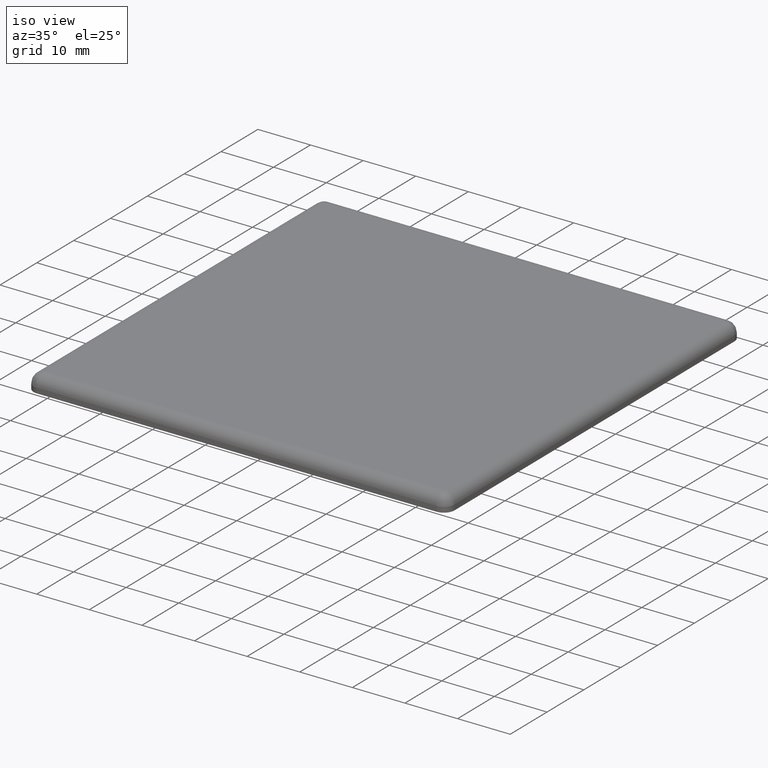
[diagram: clean part render]
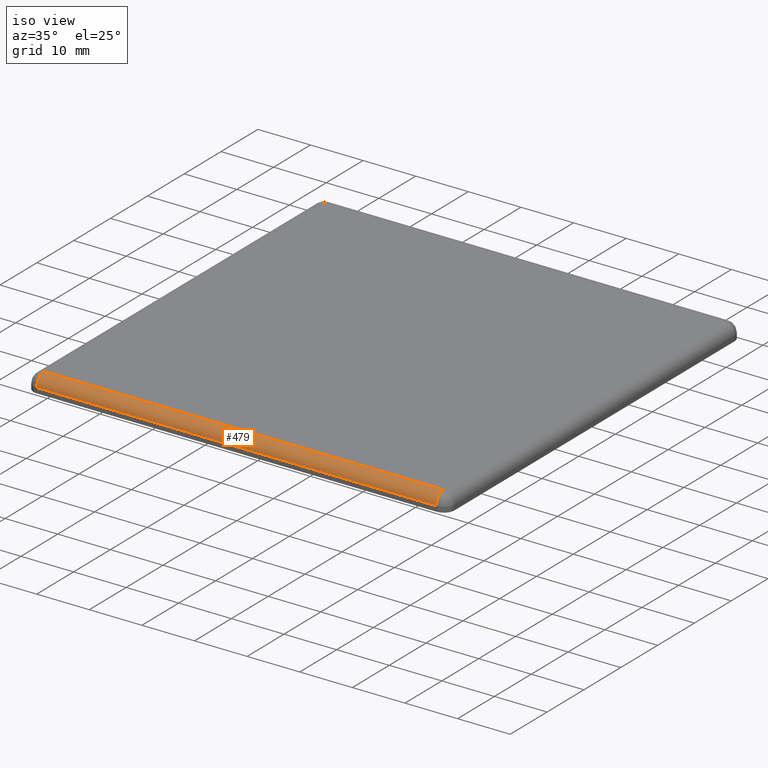
[diagram: same view with one face highlighted and labeled with its STEP entity id]
A machine part, iso view. The second image highlights one B-rep face of the part: STEP entity #479.
In plain terms, the highlighted cylindrical surface (edge-blend (fillet) strip) has radius 2 mm, axis along (-1, 0, 0).
Its self-contained STEP definition (entity closure, byte-faithful):
#149=CARTESIAN_POINT('',(37.999999999839922,2.0,2.999999333987962));
#150=VERTEX_POINT('',#149);
#167=CARTESIAN_POINT('',(-37.999999999839929,2.0,2.999999333987962));
#168=VERTEX_POINT('',#167);
#175=CARTESIAN_POINT('',(-37.999999999839929,2.0,2.999999333987962));
#176=DIRECTION('',(1.0,0.0,0.0));
#177=VECTOR('',#176,75.999999999679858);
#178=LINE('',#175,#177);
#179=EDGE_CURVE('',#168,#150,#178,.T.);
#262=CARTESIAN_POINT('',(-37.999999999839929,0.0,0.999999333987962));
#263=VERTEX_POINT('',#262);
#288=CARTESIAN_POINT('',(37.999999999839929,0.0,0.999999333987962));
#289=VERTEX_POINT('',#288);
#296=CARTESIAN_POINT('',(-37.999999999839929,0.0,0.999999333987962));
#297=DIRECTION('',(1.0,0.0,0.0));
#298=VECTOR('',#297,75.999999999679858);
#299=LINE('',#296,#298);
#300=EDGE_CURVE('',#263,#289,#299,.T.);
#451=CARTESIAN_POINT('',(37.999999999839929,2.0,0.999999333987962));
#452=DIRECTION('',(1.0,0.0,0.0));
#453=DIRECTION('',(0.0,-1.0,0.0));
#454=AXIS2_PLACEMENT_3D('',#451,#452,#453);
#455=CIRCLE('',#454,2.0);
#456=EDGE_CURVE('',#150,#289,#455,.T.);
#462=CARTESIAN_POINT('',(-37.999999999839929,2.0,0.999999333987962));
#463=DIRECTION('',(-1.0,0.0,0.0));
#464=DIRECTION('',(0.0,-1.0,0.0));
#465=AXIS2_PLACEMENT_3D('',#462,#463,#464);
#466=CYLINDRICAL_SURFACE('',#465,2.0);
#467=ORIENTED_EDGE('',*,*,#456,.F.);
#468=ORIENTED_EDGE('',*,*,#179,.F.);
#469=CARTESIAN_POINT('',(-37.999999999839929,2.0,0.999999333987962));
#470=DIRECTION('',(-1.0,0.0,0.0));
#471=DIRECTION('',(0.0,-1.0,0.0));
#472=AXIS2_PLACEMENT_3D('',#469,#470,#471);
#473=CIRCLE('',#472,2.0);
#474=EDGE_CURVE('',#263,#168,#473,.T.);
#475=ORIENTED_EDGE('',*,*,#474,.F.);
#476=ORIENTED_EDGE('',*,*,#300,.T.);
#477=EDGE_LOOP('',(#467,#468,#475,#476));
#478=FACE_OUTER_BOUND('',#477,.T.);
#479=ADVANCED_FACE('',(#478),#466,.T.);